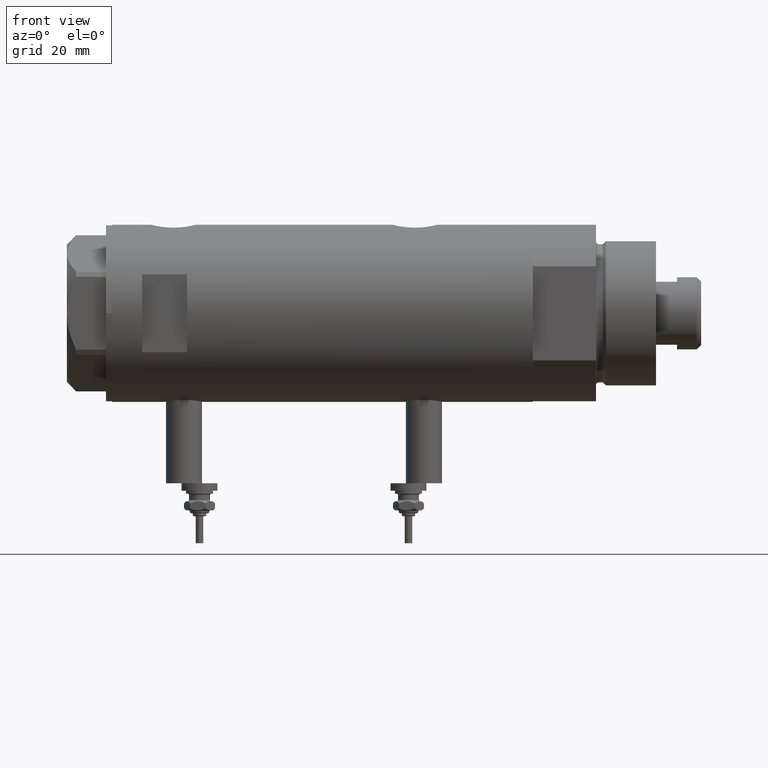
[diagram: clean part render]
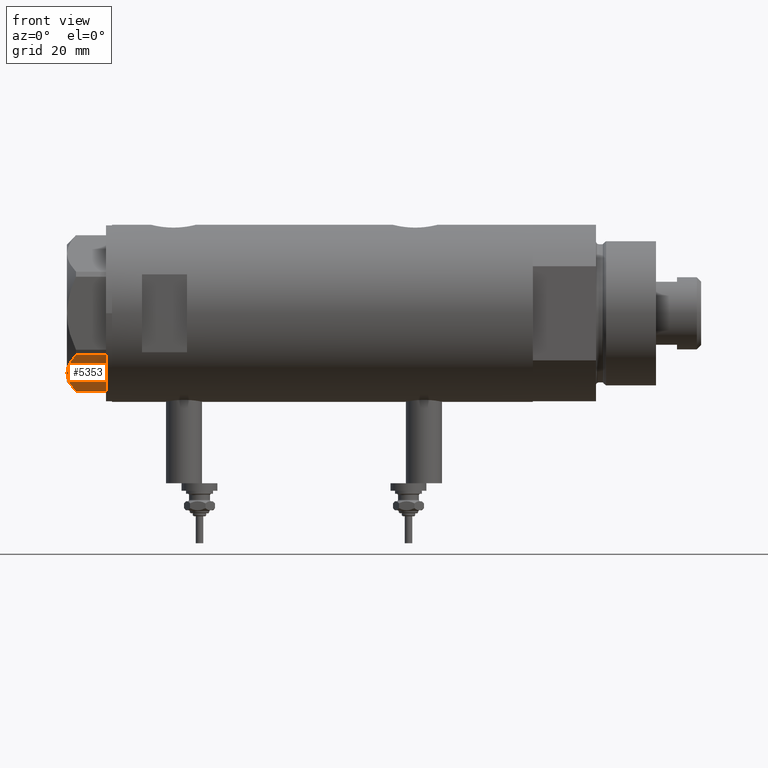
[diagram: same view with one face highlighted and labeled with its STEP entity id]
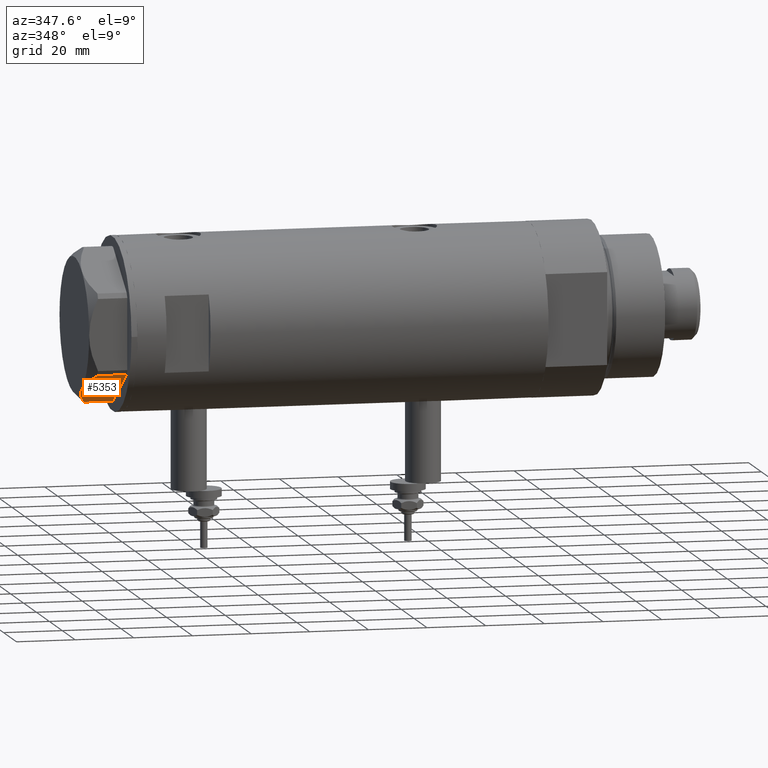
[diagram: same view with one face highlighted and labeled with its STEP entity id]
A machine part, front view. The second image highlights one B-rep face of the part: STEP entity #5353.
A second angle (auxiliary view) of the same face is appended — the face is thin or edge-on in the first view.
In plain terms, the highlighted planar face has unit normal (0, 0.5, 0.866).
Its self-contained STEP definition (entity closure, byte-faithful):
#110 = LINE ( 'NONE', #5135, #2575 ) ;
#261 = CARTESIAN_POINT ( 'NONE',  ( -18.64279229058393739, 15.79469123530780372, 11.57055225522972286 ) ) ;
#372 = AXIS2_PLACEMENT_3D ( 'NONE', #4193, #5107, #5148 ) ;
#529 = DIRECTION ( 'NONE',  ( 0.000000000000000000, 0.000000000000000000, 1.000000000000000000 ) ) ;
#730 = CARTESIAN_POINT ( 'NONE',  ( -11.50000000000004441, 19.91858428704211548, 13.00000000000000000 ) ) ;
#820 = CARTESIAN_POINT ( 'NONE',  ( -20.35958612119325650, 14.80349985506242838, 10.84420102443839085 ) ) ;
#882 = ORIENTED_EDGE ( 'NONE', *, *, #3345, .F. ) ;
#1055 = VERTEX_POINT ( 'NONE', #3760 ) ;
#1156 = DIRECTION ( 'NONE',  ( 0.000000000000000000, 0.000000000000000000, -1.000000000000000000 ) ) ;
#1497 = B_SPLINE_CURVE_WITH_KNOTS ( 'NONE', 3,
 ( #1598, #1661, #2109, #2966, #5195, #4765, #5740, #3026, #3493, #4730 ),
 .UNSPECIFIED., .F., .F.,
 ( 4, 2, 2, 2, 4 ),
 ( 0.001228959670438532553, 0.007497079744270828371, 0.01063113978118697921, 0.01219816979964505159, 0.01376519981810312397 ),
 .UNSPECIFIED. ) ;
#1592 = EDGE_CURVE ( 'NONE', #1055, #3154, #4901, .T. ) ;
#1598 = CARTESIAN_POINT ( 'NONE',  ( -0.9699484522384476115, 25.99811238272281599, 9.983800287807556018 ) ) ;
#1661 = CARTESIAN_POINT ( 'NONE',  ( -2.626494320835643048, 25.04170517956326236, 10.87778242614345814 ) ) ;
#1922 = ORIENTED_EDGE ( 'NONE', *, *, #1592, .F. ) ;
#1949 = FACE_OUTER_BOUND ( 'NONE', #4211, .T. ) ;
#1991 = ORIENTED_EDGE ( 'NONE', *, *, #2224, .T. ) ;
#2109 = CARTESIAN_POINT ( 'NONE',  ( -4.320186229909891651, 24.06385169993495055, 11.62937486882611005 ) ) ;
#2144 = CARTESIAN_POINT ( 'NONE',  ( -22.03005154776142760, 13.83905619136132259, 9.983800287807632401 ) ) ;
#2224 = EDGE_CURVE ( 'NONE', #3958, #4151, #3358, .T. ) ;
#2402 = DIRECTION ( 'NONE',  ( -0.8660254037844380415, -0.5000000000000008882, 0.000000000000000000 ) ) ;
#2542 = CARTESIAN_POINT ( 'NONE',  ( -13.32175508098984018, 18.86679350063497296, 13.00000000000009237 ) ) ;
#2572 = CARTESIAN_POINT ( 'NONE',  ( -21.20080365460317751, 14.31782268570117367, 10.43131750950939818 ) ) ;
#2575 = VECTOR ( 'NONE', #1156, 1000.000000000000000 ) ;
#2610 = CARTESIAN_POINT ( 'NONE',  ( -17.32831362639716843, 16.55360584592005679, 12.04068176582934235 ) ) ;
#2843 = CARTESIAN_POINT ( 'NONE',  ( 0.000000000000000000, 26.55811238272274366, 0.000000000000000000 ) ) ;
#2966 = CARTESIAN_POINT ( 'NONE',  ( -6.946777556903628970, 22.54738849024396075, 12.42689993760377831 ) ) ;
#3026 = CARTESIAN_POINT ( 'NONE',  ( -10.58093321976963175, 20.44920774001128194, 12.98168640760950510 ) ) ;
#3154 = VERTEX_POINT ( 'NONE', #5334 ) ;
#3345 = EDGE_CURVE ( 'NONE', #4927, #1055, #1497, .T. ) ;
#3358 = LINE ( 'NONE', #2843, #3635 ) ;
#3493 = CARTESIAN_POINT ( 'NONE',  ( -11.04134848610939557, 20.18338686205100885, 13.00000000000010125 ) ) ;
#3517 = CARTESIAN_POINT ( 'NONE',  ( -0.9699484522384476115, 25.99811238272281599, 9.983800287807556018 ) ) ;
#3635 = VECTOR ( 'NONE', #2402, 1000.000000000000227 ) ;
#3760 = CARTESIAN_POINT ( 'NONE',  ( -11.50000000000004441, 19.91858428704211548, 13.00000000000000000 ) ) ;
#3942 = CARTESIAN_POINT ( 'NONE',  ( -19.07486218896993790, 15.54523556316591915, 11.39727285399141898 ) ) ;
#3958 = VERTEX_POINT ( 'NONE', #4373 ) ;
#4031 = EDGE_CURVE ( 'NONE', #4927, #3958, #110, .T. ) ;
#4123 = LINE ( 'NONE', #5518, #4485 ) ;
#4151 = VERTEX_POINT ( 'NONE', #4345 ) ;
#4193 = CARTESIAN_POINT ( 'NONE',  ( 0.000000000000000000, 26.55811238272274366, 13.00000000000000000 ) ) ;
#4211 = EDGE_LOOP ( 'NONE', ( #1991, #5891, #1922, #882, #5369 ) ) ;
#4345 = CARTESIAN_POINT ( 'NONE',  ( -22.03005154776141339, 13.83905619136132792, 0.000000000000000000 ) ) ;
#4370 = CARTESIAN_POINT ( 'NONE',  ( -17.77001848220189828, 16.29858742851882525, 11.89212886775844424 ) ) ;
#4373 = CARTESIAN_POINT ( 'NONE',  ( -0.9699484522385893870, 25.99811238272273073, 0.000000000000000000 ) ) ;
#4485 = VECTOR ( 'NONE', #529, 1000.000000000000000 ) ;
#4546 = PLANE ( 'NONE',  #372 ) ;
#4730 = CARTESIAN_POINT ( 'NONE',  ( -11.50000000000004441, 19.91858428704211548, 13.00000000000000000 ) ) ;
#4765 = CARTESIAN_POINT ( 'NONE',  ( -9.197898616902921987, 21.24770314027493612, 12.85271263895580596 ) ) ;
#4898 = CARTESIAN_POINT ( 'NONE',  ( -15.11535457301031649, 17.83125835109857249, 12.70765172847700519 ) ) ;
#4901 = B_SPLINE_CURVE_WITH_KNOTS ( 'NONE', 3,
 ( #730, #2542, #4898, #2610, #4370, #261, #3942, #820, #2572, #2144 ),
 .UNSPECIFIED., .F., .F.,
 ( 4, 2, 2, 2, 4 ),
 ( 0.01376519981810312397, 0.01998941321701587850, 0.02154546656674406757, 0.02310151991647225664, 0.02621362661592864171 ),
 .UNSPECIFIED. ) ;
#4927 = VERTEX_POINT ( 'NONE', #3517 ) ;
#5107 = DIRECTION ( 'NONE',  ( 0.5000000000000008882, -0.8660254037844381525, 0.000000000000000000 ) ) ;
#5135 = CARTESIAN_POINT ( 'NONE',  ( -0.9699484522385897201, 25.99811238272273073, 13.00000000000000000 ) ) ;
#5148 = DIRECTION ( 'NONE',  ( 0.8660254037844381525, 0.5000000000000008882, 0.000000000000000000 ) ) ;
#5195 = CARTESIAN_POINT ( 'NONE',  ( -7.836767740116584058, 22.03355241838984924, 12.63731396715694899 ) ) ;
#5334 = CARTESIAN_POINT ( 'NONE',  ( -22.03005154776142760, 13.83905619136132259, 9.983800287807632401 ) ) ;
#5353 = ADVANCED_FACE ( 'NONE', ( #1949 ), #4546, .F. ) ;
#5369 = ORIENTED_EDGE ( 'NONE', *, *, #4031, .T. ) ;
#5518 = CARTESIAN_POINT ( 'NONE',  ( -22.03005154776142049, 13.83905619136132614, 13.00000000000000000 ) ) ;
#5740 = CARTESIAN_POINT ( 'NONE',  ( -9.656518383329851574, 20.98291889467267879, 12.90784227772844162 ) ) ;
#5876 = EDGE_CURVE ( 'NONE', #4151, #3154, #4123, .T. ) ;
#5891 = ORIENTED_EDGE ( 'NONE', *, *, #5876, .T. ) ;